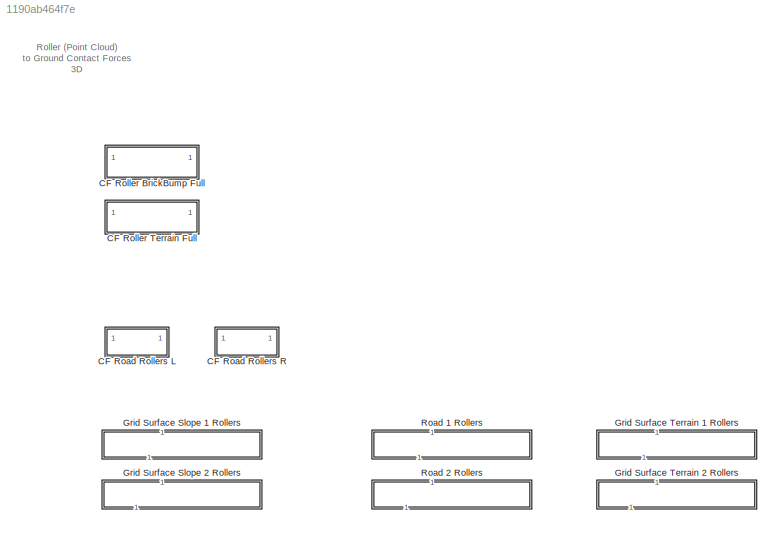
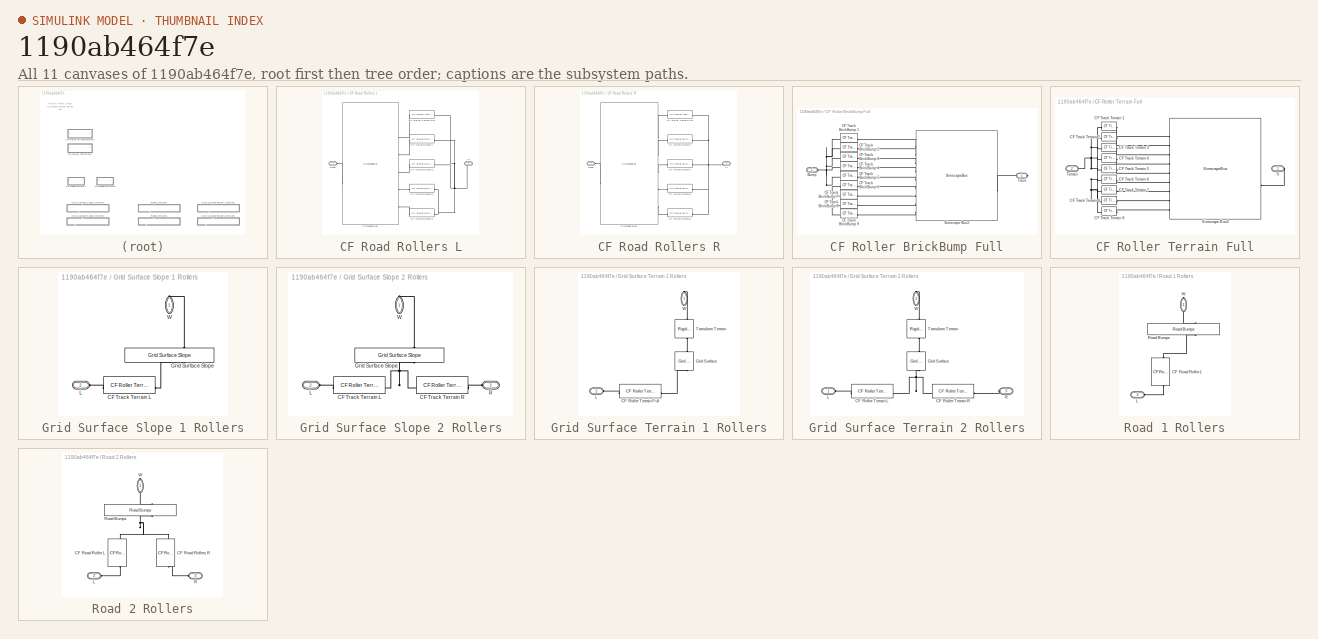
[diagram: thumbnail index - all 11 canvases of the model, root first then tree order]
MODEL slx_1190ab464f7e
KIND library
CONFIG SolverName = VariableStepAuto
BLOCK [SubSystem] CF Road Rollers L
BLOCK [Reference] CF Road Rollers L/CF Roller Terrain Full  REF=$bdroot/CF Roller Terrain Full
  SourceBlock = $bdroot/CF Roller Terrain Full
  SourceType = Contact Forces, Rollers to Terrain
BLOCK [Reference] CF Road Rollers L/CF Rollers Bump 1   REF=$bdroot/CF Roller BrickBump Full
  SourceBlock = $bdroot/CF Roller BrickBump Full
  SourceType = Contact Forces, Rollers to Bump
BLOCK [Reference] CF Road Rollers L/CF Rollers Bump 3  REF=$bdroot/CF Roller BrickBump Full
  SourceBlock = $bdroot/CF Roller BrickBump Full
  SourceType = Contact Forces, Rollers to Bump
BLOCK [Reference] CF Road Rollers L/CF Rollers Bump 5  REF=$bdroot/CF Roller BrickBump Full
  SourceBlock = $bdroot/CF Roller BrickBump Full
  SourceType = Contact Forces, Rollers to Bump
BLOCK [Reference] CF Road Rollers L/CF Rollers Bump 7  REF=$bdroot/CF Roller BrickBump Full
  SourceBlock = $bdroot/CF Roller BrickBump Full
  SourceType = Contact Forces, Rollers to Bump
BLOCK [PMIOPort] CF Road Rollers L/Road
  Side = Left
BLOCK [SimscapeBus] CF Road Rollers L/Simscape Bus
  ConnectionType = Bus: CBO_Road8
  HierarchyStrings = Road;B1;B3;B5;B7
  NameLocation = top
BLOCK [PMIOPort] CF Road Rollers L/Tr
  Port = 2
  Side = Right
BLOCK [SubSystem] CF Road Rollers R
BLOCK [Reference] CF Road Rollers R/CF Roller Terrain Full  REF=$bdroot/CF Roller Terrain Full
  SourceBlock = $bdroot/CF Roller Terrain Full
  SourceType = Contact Forces, Rollers to Terrain
BLOCK [Reference] CF Road Rollers R/CF Rollers Bump 2   REF=$bdroot/CF Roller BrickBump Full
  SourceBlock = $bdroot/CF Roller BrickBump Full
  SourceType = Contact Forces, Rollers to Bump
BLOCK [Reference] CF Road Rollers R/CF Rollers Bump 4  REF=$bdroot/CF Roller BrickBump Full
  SourceBlock = $bdroot/CF Roller BrickBump Full
  SourceType = Contact Forces, Rollers to Bump
BLOCK [Reference] CF Road Rollers R/CF Rollers Bump 6  REF=$bdroot/CF Roller BrickBump Full
  SourceBlock = $bdroot/CF Roller BrickBump Full
  SourceType = Contact Forces, Rollers to Bump
BLOCK [Reference] CF Road Rollers R/CF Rollers Bump 8  REF=$bdroot/CF Roller BrickBump Full
  SourceBlock = $bdroot/CF Roller BrickBump Full
  SourceType = Contact Forces, Rollers to Bump
BLOCK [PMIOPort] CF Road Rollers R/Road
  Side = Left
BLOCK [SimscapeBus] CF Road Rollers R/Simscape Bus1
  ConnectionType = Bus: CBO_Road8
  HierarchyStrings = Road;B2;B4;B6;B8
  NameLocation = top
BLOCK [PMIOPort] CF Road Rollers R/Tr
  Port = 2
  Side = Right
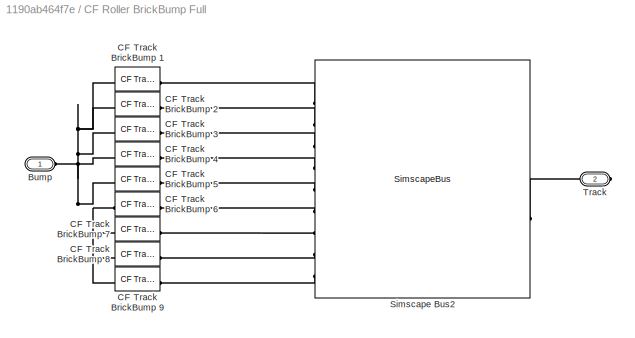
BLOCK [SubSystem] CF Roller BrickBump Full
BLOCK [PMIOPort] CF Roller BrickBump Full/Bump
  Side = Left
BLOCK [Reference] CF Roller BrickBump Full/CF Track BrickBump 1  REF=sm_trackV_lib_terrain_contact_elem/CF Track BrickBump
  LibrarySourceBlock = sm_chain_drive_lib/CF_BrickBump
  NameLocation = right
  SourceBlock = sm_trackV_lib_terrain_contact_elem/CF Track BrickBump
  SourceType = Contact Force, Track Segment to Bump
BLOCK [Reference] CF Roller BrickBump Full/CF Track BrickBump 2  REF=sm_trackV_lib_terrain_contact_elem/CF Track BrickBump
  LibrarySourceBlock = sm_chain_drive_lib/CF_BrickBump
  NameLocation = right
  SourceBlock = sm_trackV_lib_terrain_contact_elem/CF Track BrickBump
  SourceType = Contact Force, Track Segment to Bump
BLOCK [Reference] CF Roller BrickBump Full/CF Track BrickBump 3  REF=sm_trackV_lib_terrain_contact_elem/CF Track BrickBump
  LibrarySourceBlock = sm_chain_drive_lib/CF_BrickBump
  NameLocation = right
  SourceBlock = sm_trackV_lib_terrain_contact_elem/CF Track BrickBump
  SourceType = Contact Force, Track Segment to Bump
BLOCK [Reference] CF Roller BrickBump Full/CF Track BrickBump 4  REF=sm_trackV_lib_terrain_contact_elem/CF Track BrickBump
  LibrarySourceBlock = sm_chain_drive_lib/CF_BrickBump
  NameLocation = right
  SourceBlock = sm_trackV_lib_terrain_contact_elem/CF Track BrickBump
  SourceType = Contact Force, Track Segment to Bump
BLOCK [Reference] CF Roller BrickBump Full/CF Track BrickBump 5  REF=sm_trackV_lib_terrain_contact_elem/CF Track BrickBump
  LibrarySourceBlock = sm_chain_drive_lib/CF_BrickBump
  NameLocation = right
  SourceBlock = sm_trackV_lib_terrain_contact_elem/CF Track BrickBump
  SourceType = Contact Force, Track Segment to Bump
BLOCK [Reference] CF Roller BrickBump Full/CF Track BrickBump 6  REF=sm_trackV_lib_terrain_contact_elem/CF Track BrickBump
  LibrarySourceBlock = sm_chain_drive_lib/CF_BrickBump
  NameLocation = right
  SourceBlock = sm_trackV_lib_terrain_contact_elem/CF Track BrickBump
  SourceType = Contact Force, Track Segment to Bump
BLOCK [Reference] CF Roller BrickBump Full/CF Track BrickBump 7  REF=sm_trackV_lib_terrain_contact_elem/CF Track BrickBump
  LibrarySourceBlock = sm_chain_drive_lib/CF_BrickBump
  NameLocation = right
  SourceBlock = sm_trackV_lib_terrain_contact_elem/CF Track BrickBump
  SourceType = Contact Force, Track Segment to Bump
BLOCK [Reference] CF Roller BrickBump Full/CF Track BrickBump 8  REF=sm_trackV_lib_terrain_contact_elem/CF Track BrickBump
  LibrarySourceBlock = sm_chain_drive_lib/CF_BrickBump
  NameLocation = right
  SourceBlock = sm_trackV_lib_terrain_contact_elem/CF Track BrickBump
  SourceType = Contact Force, Track Segment to Bump
BLOCK [Reference] CF Roller BrickBump Full/CF Track BrickBump 9  REF=sm_trackV_lib_terrain_contact_elem/CF Track BrickBump
  LibrarySourceBlock = sm_chain_drive_lib/CF_BrickBump
  NameLocation = right
  SourceBlock = sm_trackV_lib_terrain_contact_elem/CF Track BrickBump
  SourceType = Contact Force, Track Segment to Bump
BLOCK [SimscapeBus] CF Roller BrickBump Full/Simscape Bus2
  ConnectionType = Bus: CBO_Roller9
  HierarchyStrings = P1;P2;P3;P4;P5;P6;P7;P8;P9
  NameLocation = top
BLOCK [PMIOPort] CF Roller BrickBump Full/Track
  NameLocation = top
  Port = 2
  Side = Right
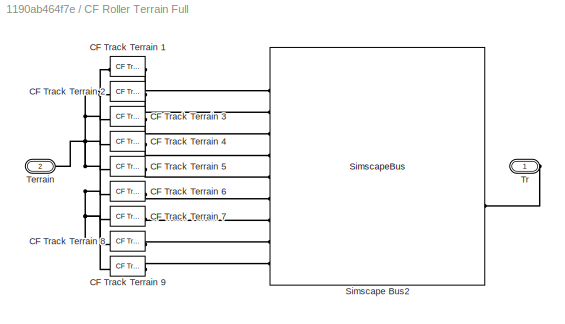
BLOCK [SubSystem] CF Roller Terrain Full
BLOCK [Reference] CF Roller Terrain Full/CF Track Terrain 1  REF=sm_trackV_lib_terrain_contact_elem/CF Track Terrain
  LibrarySourceBlock = sm_chain_drive_lib/CF_Road
  NameLocation = right
  SourceBlock = sm_trackV_lib_terrain_contact_elem/CF Track Terrain
  SourceType = Contact Force, Track Segment to Terrain
BLOCK [Reference] CF Roller Terrain Full/CF Track Terrain 2  REF=sm_trackV_lib_terrain_contact_elem/CF Track Terrain
  LibrarySourceBlock = sm_chain_drive_lib/CF_Road
  NameLocation = right
  SourceBlock = sm_trackV_lib_terrain_contact_elem/CF Track Terrain
  SourceType = Contact Force, Track Segment to Terrain
BLOCK [Reference] CF Roller Terrain Full/CF Track Terrain 3  REF=sm_trackV_lib_terrain_contact_elem/CF Track Terrain
  LibrarySourceBlock = sm_chain_drive_lib/CF_Road
  NameLocation = right
  SourceBlock = sm_trackV_lib_terrain_contact_elem/CF Track Terrain
  SourceType = Contact Force, Track Segment to Terrain
BLOCK [Reference] CF Roller Terrain Full/CF Track Terrain 4  REF=sm_trackV_lib_terrain_contact_elem/CF Track Terrain
  LibrarySourceBlock = sm_chain_drive_lib/CF_Road
  NameLocation = right
  SourceBlock = sm_trackV_lib_terrain_contact_elem/CF Track Terrain
  SourceType = Contact Force, Track Segment to Terrain
BLOCK [Reference] CF Roller Terrain Full/CF Track Terrain 5  REF=sm_trackV_lib_terrain_contact_elem/CF Track Terrain
  LibrarySourceBlock = sm_chain_drive_lib/CF_Road
  NameLocation = right
  SourceBlock = sm_trackV_lib_terrain_contact_elem/CF Track Terrain
  SourceType = Contact Force, Track Segment to Terrain
BLOCK [Reference] CF Roller Terrain Full/CF Track Terrain 6  REF=sm_trackV_lib_terrain_contact_elem/CF Track Terrain
  LibrarySourceBlock = sm_chain_drive_lib/CF_Road
  NameLocation = right
  SourceBlock = sm_trackV_lib_terrain_contact_elem/CF Track Terrain
  SourceType = Contact Force, Track Segment to Terrain
BLOCK [Reference] CF Roller Terrain Full/CF Track Terrain 7  REF=sm_trackV_lib_terrain_contact_elem/CF Track Terrain
  LibrarySourceBlock = sm_chain_drive_lib/CF_Road
  NameLocation = right
  SourceBlock = sm_trackV_lib_terrain_contact_elem/CF Track Terrain
  SourceType = Contact Force, Track Segment to Terrain
BLOCK [Reference] CF Roller Terrain Full/CF Track Terrain 8  REF=sm_trackV_lib_terrain_contact_elem/CF Track Terrain
  LibrarySourceBlock = sm_chain_drive_lib/CF_Road
  NameLocation = right
  SourceBlock = sm_trackV_lib_terrain_contact_elem/CF Track Terrain
  SourceType = Contact Force, Track Segment to Terrain
BLOCK [Reference] CF Roller Terrain Full/CF Track Terrain 9  REF=sm_trackV_lib_terrain_contact_elem/CF Track Terrain
  LibrarySourceBlock = sm_chain_drive_lib/CF_Road
  NameLocation = right
  SourceBlock = sm_trackV_lib_terrain_contact_elem/CF Track Terrain
  SourceType = Contact Force, Track Segment to Terrain
BLOCK [SimscapeBus] CF Roller Terrain Full/Simscape Bus2
  ConnectionType = Bus: CBO_Roller9
  HierarchyStrings = P1;P2;P3;P4;P5;P6;P7;P8;P9
  NameLocation = top
BLOCK [PMIOPort] CF Roller Terrain Full/Terrain
  Port = 2
  Side = Left
BLOCK [PMIOPort] CF Roller Terrain Full/Tr
  Side = Right
BLOCK [SubSystem] Grid Surface Slope 1 Rollers
  NameLocation = right
BLOCK [Reference] Grid Surface Slope 1 Rollers/CF Track Terrain L  REF=$bdroot/CF Roller Terrain Full
  SourceBlock = $bdroot/CF Roller Terrain Full
  SourceType = Contact Forces, Rollers to Terrain
BLOCK [Reference] Grid Surface Slope 1 Rollers/Grid Surface Slope  REF=sm_excv_scene_lib/Grid Surface  (lib defined in slx_1cf3237a0358)
Slope
  NameLocation = right
  SourceBlock = sm_excv_scene_lib/Grid Surface\nSlope
  SourceType = Slope
BLOCK [PMIOPort] Grid Surface Slope 1 Rollers/L
  Port = 2
  Side = Left
BLOCK [PMIOPort] Grid Surface Slope 1 Rollers/W
  NameLocation = left
  Side = Right
BLOCK [SubSystem] Grid Surface Slope 2 Rollers
  NameLocation = right
BLOCK [Reference] Grid Surface Slope 2 Rollers/CF Track Terrain L  REF=$bdroot/CF Roller Terrain Full
  SourceBlock = $bdroot/CF Roller Terrain Full
  SourceType = Contact Forces, Rollers to Terrain
BLOCK [Reference] Grid Surface Slope 2 Rollers/CF Track Terrain R  REF=$bdroot/CF Roller Terrain Full
  SourceBlock = $bdroot/CF Roller Terrain Full
  SourceType = Contact Forces, Rollers to Terrain
BLOCK [Reference] Grid Surface Slope 2 Rollers/Grid Surface Slope  REF=sm_excv_scene_lib/Grid Surface  (lib defined in slx_1cf3237a0358)
Slope
  NameLocation = right
  SourceBlock = sm_excv_scene_lib/Grid Surface\nSlope
  SourceType = Slope
BLOCK [PMIOPort] Grid Surface Slope 2 Rollers/L
  Port = 2
  Side = Left
BLOCK [PMIOPort] Grid Surface Slope 2 Rollers/R
  Port = 3
  Side = Left
BLOCK [PMIOPort] Grid Surface Slope 2 Rollers/W
  NameLocation = left
  Side = Right
BLOCK [SubSystem] Grid Surface Terrain 1 Rollers
  NameLocation = right
BLOCK [Reference] Grid Surface Terrain 1 Rollers/CF Roller Terrain Full  REF=$bdroot/CF Roller Terrain Full
  SourceBlock = $bdroot/CF Roller Terrain Full
  SourceType = Contact Forces, Rollers to Terrain
BLOCK [Reference] Grid Surface Terrain 1 Rollers/Grid Surface  REF=sm_lib/Curves and Surfaces/Grid Surface
  NameLocation = left
  SourceBlock = sm_lib/Curves and Surfaces/Grid Surface
  SourceType = Grid Surface
BLOCK [PMIOPort] Grid Surface Terrain 1 Rollers/L
  Port = 2
  Side = Left
BLOCK [Reference] Grid Surface Terrain 1 Rollers/Transform Terrain  REF=sm_lib/Frames and
Transforms/Rigid
Transform
  NameLocation = left
  SourceBlock = sm_lib/Frames and\nTransforms/Rigid\nTransform
  SourceType = Rigid\nTransform
BLOCK [PMIOPort] Grid Surface Terrain 1 Rollers/W
  NameLocation = left
  Side = Right
BLOCK [SubSystem] Grid Surface Terrain 2 Rollers
  NameLocation = right
BLOCK [Reference] Grid Surface Terrain 2 Rollers/CF Roller Terrain L  REF=$bdroot/CF Roller Terrain Full
  SourceBlock = $bdroot/CF Roller Terrain Full
  SourceType = Contact Forces, Rollers to Terrain
BLOCK [Reference] Grid Surface Terrain 2 Rollers/CF Roller Terrain R  REF=$bdroot/CF Roller Terrain Full
  SourceBlock = $bdroot/CF Roller Terrain Full
  SourceType = Contact Forces, Rollers to Terrain
BLOCK [Reference] Grid Surface Terrain 2 Rollers/Grid Surface  REF=sm_lib/Curves and Surfaces/Grid Surface
  NameLocation = left
  SourceBlock = sm_lib/Curves and Surfaces/Grid Surface
  SourceType = Grid Surface
BLOCK [PMIOPort] Grid Surface Terrain 2 Rollers/L
  Side = Left
BLOCK [PMIOPort] Grid Surface Terrain 2 Rollers/R
  Port = 3
  Side = Left
BLOCK [Reference] Grid Surface Terrain 2 Rollers/Transform Terrain  REF=sm_lib/Frames and
Transforms/Rigid
Transform
  NameLocation = left
  SourceBlock = sm_lib/Frames and\nTransforms/Rigid\nTransform
  SourceType = Rigid\nTransform
BLOCK [PMIOPort] Grid Surface Terrain 2 Rollers/W
  NameLocation = left
  Port = 2
  Side = Right
BLOCK [SubSystem] Road 1 Rollers
  NameLocation = right
BLOCK [Reference] Road 1 Rollers/CF Road Roller L  REF=$bdroot/CF Road Rollers L
  LibrarySourceBlock = sm_excv_scene_lib/CF\nRoad\nRoller L
  NameLocation = left
  SourceBlock = $bdroot/CF Road Rollers L
  SourceType = SubSystem
BLOCK [PMIOPort] Road 1 Rollers/L
  Port = 2
  Side = Left
BLOCK [Reference] Road 1 Rollers/Road Bumps  REF=sm_excv_scene_lib/Road  (lib defined in slx_1cf3237a0358)
Bumps
  NameLocation = right
  SourceBlock = sm_excv_scene_lib/Road\nBumps
BLOCK [PMIOPort] Road 1 Rollers/W
  NameLocation = right
  Side = Right
BLOCK [SubSystem] Road 2 Rollers
  NameLocation = right
BLOCK [Reference] Road 2 Rollers/CF Road Roller L  REF=$bdroot/CF Road Rollers L
  LibrarySourceBlock = sm_excv_scene_lib/CF\nRoad\nRoller L
  NameLocation = left
  SourceBlock = $bdroot/CF Road Rollers L
  SourceType = SubSystem
BLOCK [Reference] Road 2 Rollers/CF Road Rollers R  REF=$bdroot/CF Road Rollers R
  LibrarySourceBlock = sm_excv_scene_lib/CF\nRoad\nRollers R
  NameLocation = right
  SourceBlock = $bdroot/CF Road Rollers R
  SourceType = SubSystem
BLOCK [PMIOPort] Road 2 Rollers/L
  Port = 2
  Side = Left
BLOCK [PMIOPort] Road 2 Rollers/R
  Port = 3
  Side = Left
BLOCK [Reference] Road 2 Rollers/Road Bumps  REF=sm_excv_scene_lib/Road  (lib defined in slx_1cf3237a0358)
Bumps
  NameLocation = right
  SourceBlock = sm_excv_scene_lib/Road\nBumps
BLOCK [PMIOPort] Road 2 Rollers/W
  NameLocation = right
  Side = Right
ANNOTATION (root): Roller (Point Cloud) to Ground Contact Forces 3D
PLINE CF Road Rollers L/CF Roller Terrain Full:LConn1 -- CF Road Rollers L/Simscape Bus:LConn1
PNET net1: CF Road Rollers L/CF Roller Terrain Full:RConn1 -- CF Road Rollers L/CF Rollers Bump 1 :RConn1 -- CF Road Rollers L/CF Rollers Bump 3:RConn1 -- CF Road Rollers L/CF Rollers Bump 5:RConn1 -- CF Road Rollers L/CF Rollers Bump 7:RConn1 -- CF Road Rollers L/Tr:RConn1
PLINE CF Road Rollers L/CF Rollers Bump 1 :LConn1 -- CF Road Rollers L/Simscape Bus:LConn2
PLINE CF Road Rollers L/CF Rollers Bump 3:LConn1 -- CF Road Rollers L/Simscape Bus:LConn3
PLINE CF Road Rollers L/CF Rollers Bump 5:LConn1 -- CF Road Rollers L/Simscape Bus:LConn4
PLINE CF Road Rollers L/CF Rollers Bump 7:LConn1 -- CF Road Rollers L/Simscape Bus:LConn5
PLINE CF Road Rollers L/Road:RConn1 -- CF Road Rollers L/Simscape Bus:RConn1
PLINE CF Road Rollers R/CF Roller Terrain Full:LConn1 -- CF Road Rollers R/Simscape Bus1:LConn1
PNET net2: CF Road Rollers R/CF Roller Terrain Full:RConn1 -- CF Road Rollers R/CF Rollers Bump 2 :RConn1 -- CF Road Rollers R/CF Rollers Bump 4:RConn1 -- CF Road Rollers R/CF Rollers Bump 6:RConn1 -- CF Road Rollers R/CF Rollers Bump 8:RConn1 -- CF Road Rollers R/Tr:RConn1
PLINE CF Road Rollers R/CF Rollers Bump 2 :LConn1 -- CF Road Rollers R/Simscape Bus1:LConn2
PLINE CF Road Rollers R/CF Rollers Bump 4:LConn1 -- CF Road Rollers R/Simscape Bus1:LConn3
PLINE CF Road Rollers R/CF Rollers Bump 6:LConn1 -- CF Road Rollers R/Simscape Bus1:LConn4
PLINE CF Road Rollers R/CF Rollers Bump 8:LConn1 -- CF Road Rollers R/Simscape Bus1:LConn5
PLINE CF Road Rollers R/Road:RConn1 -- CF Road Rollers R/Simscape Bus1:RConn1
PNET net3: CF Roller BrickBump Full/Bump:RConn1 -- CF Roller BrickBump Full/CF Track BrickBump 1:LConn1 -- CF Roller BrickBump Full/CF Track BrickBump 2:LConn1 -- CF Roller BrickBump Full/CF Track BrickBump 3:LConn1 -- CF Roller BrickBump Full/CF Track BrickBump 4:LConn1 -- CF Roller BrickBump Full/CF Track BrickBump 5:LConn1 -- CF Roller BrickBump Full/CF Track BrickBump 6:LConn1 -- CF Roller BrickBump Full/CF Track BrickBump 7:LConn1 -- CF Roller BrickBump Full/CF Track BrickBump 8:LConn1 -- CF Roller BrickBump Full/CF Track BrickBump 9:LConn1
PLINE CF Roller BrickBump Full/CF Track BrickBump 1:RConn1 -- CF Roller BrickBump Full/Simscape Bus2:LConn1
PLINE CF Roller BrickBump Full/CF Track BrickBump 2:RConn1 -- CF Roller BrickBump Full/Simscape Bus2:LConn2
PLINE CF Roller BrickBump Full/CF Track BrickBump 3:RConn1 -- CF Roller BrickBump Full/Simscape Bus2:LConn3
PLINE CF Roller BrickBump Full/CF Track BrickBump 4:RConn1 -- CF Roller BrickBump Full/Simscape Bus2:LConn4
PLINE CF Roller BrickBump Full/CF Track BrickBump 5:RConn1 -- CF Roller BrickBump Full/Simscape Bus2:LConn5
PLINE CF Roller BrickBump Full/CF Track BrickBump 6:RConn1 -- CF Roller BrickBump Full/Simscape Bus2:LConn6
PLINE CF Roller BrickBump Full/CF Track BrickBump 7:RConn1 -- CF Roller BrickBump Full/Simscape Bus2:LConn7
PLINE CF Roller BrickBump Full/CF Track BrickBump 8:RConn1 -- CF Roller BrickBump Full/Simscape Bus2:LConn8
PLINE CF Roller BrickBump Full/CF Track BrickBump 9:RConn1 -- CF Roller BrickBump Full/Simscape Bus2:LConn9
PLINE CF Roller BrickBump Full/Simscape Bus2:RConn1 -- CF Roller BrickBump Full/Track:RConn1
PNET net4: CF Roller Terrain Full/CF Track Terrain 1:LConn1 -- CF Roller Terrain Full/CF Track Terrain 2:LConn1 -- CF Roller Terrain Full/CF Track Terrain 3:LConn1 -- CF Roller Terrain Full/CF Track Terrain 4:LConn1 -- CF Roller Terrain Full/CF Track Terrain 5:LConn1 -- CF Roller Terrain Full/CF Track Terrain 6:LConn1 -- CF Roller Terrain Full/CF Track Terrain 7:LConn1 -- CF Roller Terrain Full/CF Track Terrain 8:LConn1 -- CF Roller Terrain Full/CF Track Terrain 9:LConn1 -- CF Roller Terrain Full/Terrain:RConn1
PLINE CF Roller Terrain Full/CF Track Terrain 1:RConn1 -- CF Roller Terrain Full/Simscape Bus2:LConn1
PLINE CF Roller Terrain Full/CF Track Terrain 2:RConn1 -- CF Roller Terrain Full/Simscape Bus2:LConn2
PLINE CF Roller Terrain Full/CF Track Terrain 3:RConn1 -- CF Roller Terrain Full/Simscape Bus2:LConn3
PLINE CF Roller Terrain Full/CF Track Terrain 4:RConn1 -- CF Roller Terrain Full/Simscape Bus2:LConn4
PLINE CF Roller Terrain Full/CF Track Terrain 5:RConn1 -- CF Roller Terrain Full/Simscape Bus2:LConn5
PLINE CF Roller Terrain Full/CF Track Terrain 6:RConn1 -- CF Roller Terrain Full/Simscape Bus2:LConn6
PLINE CF Roller Terrain Full/CF Track Terrain 7:RConn1 -- CF Roller Terrain Full/Simscape Bus2:LConn7
PLINE CF Roller Terrain Full/CF Track Terrain 8:RConn1 -- CF Roller Terrain Full/Simscape Bus2:LConn8
PLINE CF Roller Terrain Full/CF Track Terrain 9:RConn1 -- CF Roller Terrain Full/Simscape Bus2:LConn9
PLINE CF Roller Terrain Full/Simscape Bus2:RConn1 -- CF Roller Terrain Full/Tr:RConn1
PLINE Grid Surface Slope 1 Rollers/CF Track Terrain L:LConn1 -- Grid Surface Slope 1 Rollers/Grid Surface Slope:LConn1
PLINE Grid Surface Slope 1 Rollers/CF Track Terrain L:RConn1 -- Grid Surface Slope 1 Rollers/L:RConn1
PLINE Grid Surface Slope 1 Rollers/Grid Surface Slope:RConn1 -- Grid Surface Slope 1 Rollers/W:RConn1
PNET net5: Grid Surface Slope 2 Rollers/CF Track Terrain L:LConn1 -- Grid Surface Slope 2 Rollers/CF Track Terrain R:LConn1 -- Grid Surface Slope 2 Rollers/Grid Surface Slope:LConn1
PLINE Grid Surface Slope 2 Rollers/CF Track Terrain L:RConn1 -- Grid Surface Slope 2 Rollers/L:RConn1
PLINE Grid Surface Slope 2 Rollers/CF Track Terrain R:RConn1 -- Grid Surface Slope 2 Rollers/R:RConn1
PLINE Grid Surface Slope 2 Rollers/Grid Surface Slope:RConn1 -- Grid Surface Slope 2 Rollers/W:RConn1
PLINE Grid Surface Terrain 1 Rollers/CF Roller Terrain Full:LConn1 -- Grid Surface Terrain 1 Rollers/Grid Surface:RConn1
PLINE Grid Surface Terrain 1 Rollers/CF Roller Terrain Full:RConn1 -- Grid Surface Terrain 1 Rollers/L:RConn1
PLINE Grid Surface Terrain 1 Rollers/Grid Surface:LConn1 -- Grid Surface Terrain 1 Rollers/Transform Terrain:RConn1
PLINE Grid Surface Terrain 1 Rollers/Transform Terrain:LConn1 -- Grid Surface Terrain 1 Rollers/W:RConn1
PNET net6: Grid Surface Terrain 2 Rollers/CF Roller Terrain L:LConn1 -- Grid Surface Terrain 2 Rollers/CF Roller Terrain R:LConn1 -- Grid Surface Terrain 2 Rollers/Grid Surface:RConn1
PLINE Grid Surface Terrain 2 Rollers/CF Roller Terrain L:RConn1 -- Grid Surface Terrain 2 Rollers/L:RConn1
PLINE Grid Surface Terrain 2 Rollers/CF Roller Terrain R:RConn1 -- Grid Surface Terrain 2 Rollers/R:RConn1
PLINE Grid Surface Terrain 2 Rollers/Grid Surface:LConn1 -- Grid Surface Terrain 2 Rollers/Transform Terrain:RConn1
PLINE Grid Surface Terrain 2 Rollers/Transform Terrain:LConn1 -- Grid Surface Terrain 2 Rollers/W:RConn1
PLINE Road 1 Rollers/CF Road Roller L:LConn1 -- Road 1 Rollers/Road Bumps:LConn1
PLINE Road 1 Rollers/CF Road Roller L:RConn1 -- Road 1 Rollers/L:RConn1
PLINE Road 1 Rollers/Road Bumps:RConn1 -- Road 1 Rollers/W:RConn1
PNET net7: Road 2 Rollers/CF Road Roller L:LConn1 -- Road 2 Rollers/CF Road Rollers R:LConn1 -- Road 2 Rollers/Road Bumps:LConn1
PLINE Road 2 Rollers/CF Road Roller L:RConn1 -- Road 2 Rollers/L:RConn1
PLINE Road 2 Rollers/CF Road Rollers R:RConn1 -- Road 2 Rollers/R:RConn1
PLINE Road 2 Rollers/Road Bumps:RConn1 -- Road 2 Rollers/W:RConn1
note: PNET lines group multi-terminal physical nets as a canonical sorted terminal list (undirected conserving connections); 2-terminal nets keep the pairwise PLINE form
